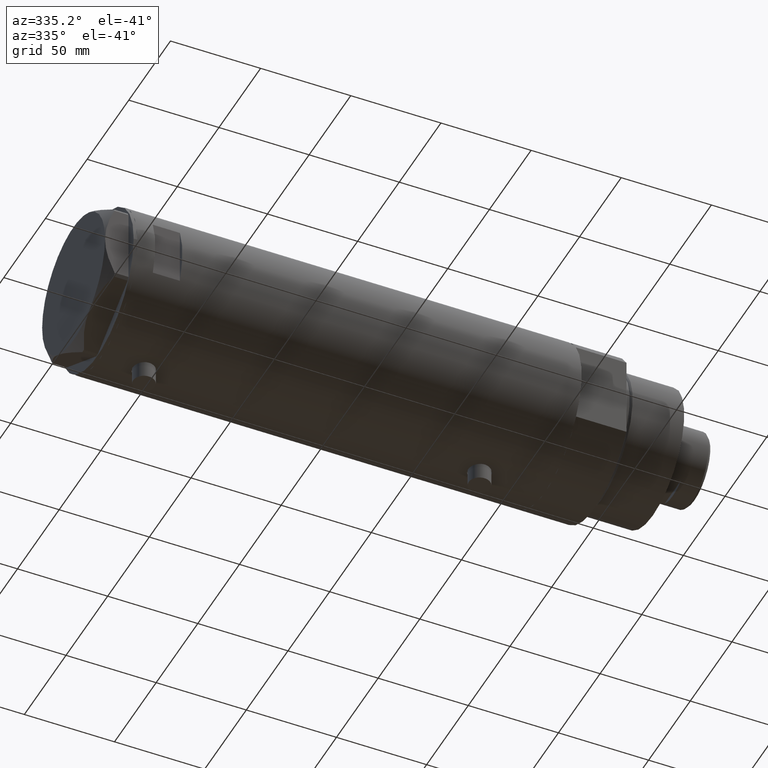
[diagram: clean part render]
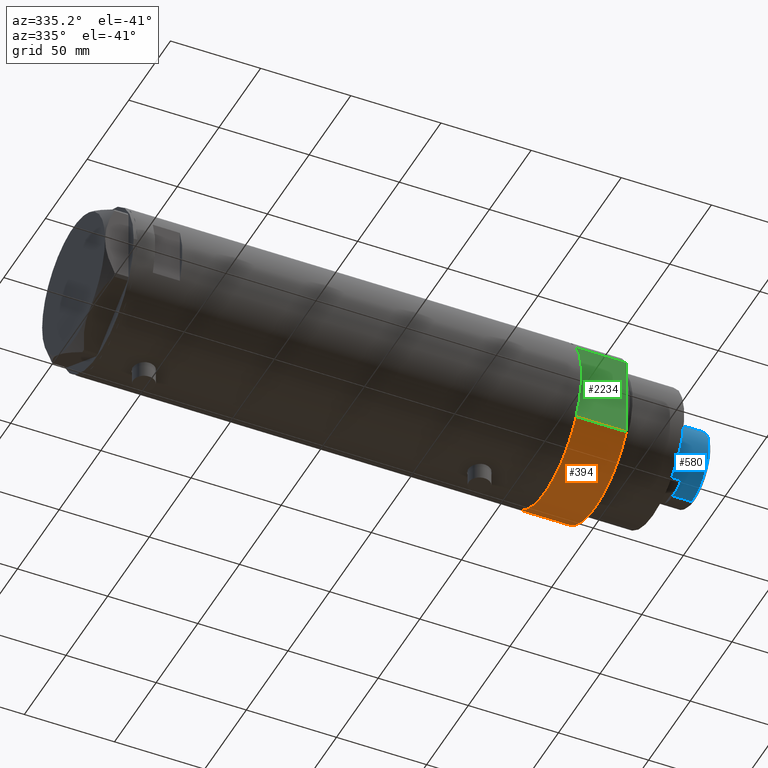
[diagram: same view with three faces highlighted in distinct colors, each labeled with its STEP entity id]
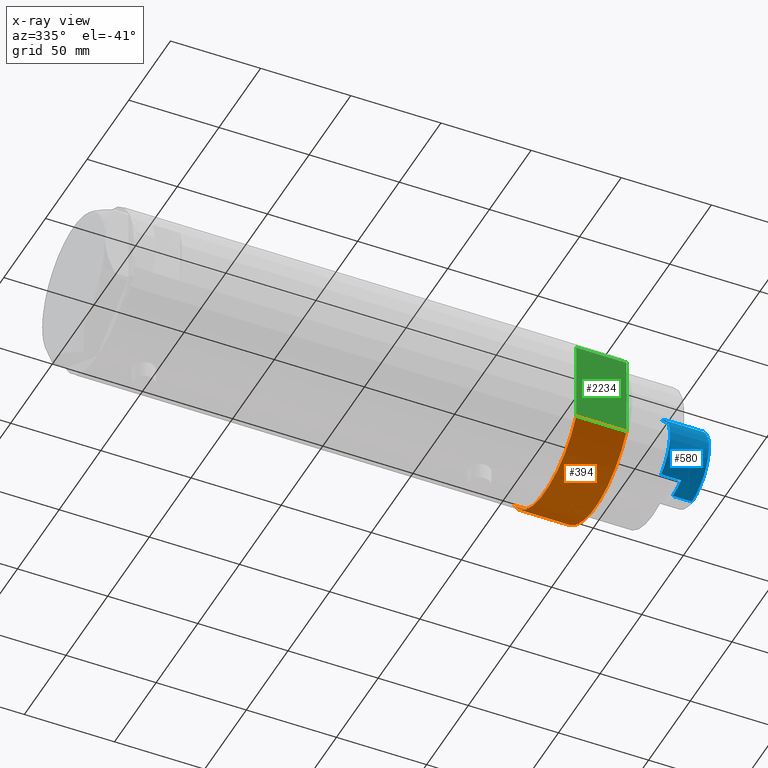
[diagram: x-ray of the same camera — body ghosted, the three highlighted faces saturated]
A machine part, auxiliary view with three faces highlighted in distinct colors.
The next image is the same camera in x-ray (body ghosted, the three faces saturated) — at least one of them is partly hidden behind the body in this view.
Their STEP definitions:

[orange] entity #394 — the highlighted cylindrical surface (partial cylindrical patch) has radius 44 mm, axis along (-1, -0, 0).
#49 = CIRCLE ( 'NONE', #2913, 44.00000000000000000 ) ;
#90 = LINE ( 'NONE', #1195, #3268 ) ;
#135 = CARTESIAN_POINT ( 'NONE',  ( 23.01629857296780557, 37.50000000000000000, 27.89999999999999858 ) ) ;
#159 = DIRECTION ( 'NONE',  ( -1.000000000000000000, 0.000000000000000000, 0.000000000000000000 ) ) ;
#394 = ADVANCED_FACE ( 'NONE', ( #999 ), #2372, .T. ) ;
#421 = DIRECTION ( 'NONE',  ( 1.000000000000000000, 0.000000000000000000, 0.000000000000000000 ) ) ;
#455 = VERTEX_POINT ( 'NONE', #3279 ) ;
#682 = EDGE_LOOP ( 'NONE', ( #3407, #3739, #4315, #1361 ) ) ;
#793 = CARTESIAN_POINT ( 'NONE',  ( 0.000000000000000000, 0.000000000000000000, 27.89999999999999858 ) ) ;
#938 = EDGE_CURVE ( 'NONE', #3996, #4109, #2918, .T. ) ;
#999 = FACE_OUTER_BOUND ( 'NONE', #682, .T. ) ;
#1195 = CARTESIAN_POINT ( 'NONE',  ( 23.01629857296780557, -37.50000000000000000, 0.000000000000000000 ) ) ;
#1213 = DIRECTION ( 'NONE',  ( -0.000000000000000000, -0.000000000000000000, 1.000000000000000000 ) ) ;
#1221 = DIRECTION ( 'NONE',  ( 1.000000000000000000, 0.000000000000000000, 0.000000000000000000 ) ) ;
#1317 = AXIS2_PLACEMENT_3D ( 'NONE', #4227, #1952, #1221 ) ;
#1361 = ORIENTED_EDGE ( 'NONE', *, *, #938, .T. ) ;
#1524 = DIRECTION ( 'NONE',  ( -0.000000000000000000, -0.000000000000000000, 1.000000000000000000 ) ) ;
#1820 = EDGE_CURVE ( 'NONE', #3436, #3996, #4392, .T. ) ;
#1952 = DIRECTION ( 'NONE',  ( 0.000000000000000000, 0.000000000000000000, 1.000000000000000000 ) ) ;
#2009 = VECTOR ( 'NONE', #1524, 1000.000000000000000 ) ;
#2215 = EDGE_CURVE ( 'NONE', #3436, #455, #90, .T. ) ;
#2372 = CYLINDRICAL_SURFACE ( 'NONE', #4319, 44.00000000000000000 ) ;
#2465 = CARTESIAN_POINT ( 'NONE',  ( 23.01629857296780557, 37.50000000000000000, 0.000000000000000000 ) ) ;
#2641 = DIRECTION ( 'NONE',  ( -0.000000000000000000, -0.000000000000000000, -1.000000000000000000 ) ) ;
#2896 = DIRECTION ( 'NONE',  ( 0.000000000000000000, 0.000000000000000000, 1.000000000000000000 ) ) ;
#2913 = AXIS2_PLACEMENT_3D ( 'NONE', #793, #2896, #421 ) ;
#2918 = LINE ( 'NONE', #3250, #2009 ) ;
#2926 = EDGE_CURVE ( 'NONE', #455, #4109, #49, .T. ) ;
#3250 = CARTESIAN_POINT ( 'NONE',  ( 23.01629857296780557, 37.50000000000000000, 0.000000000000000000 ) ) ;
#3268 = VECTOR ( 'NONE', #1213, 1000.000000000000000 ) ;
#3279 = CARTESIAN_POINT ( 'NONE',  ( 23.01629857296780557, -37.50000000000000000, 27.89999999999999858 ) ) ;
#3303 = CARTESIAN_POINT ( 'NONE',  ( 0.000000000000000000, 0.000000000000000000, 27.89999999999999858 ) ) ;
#3407 = ORIENTED_EDGE ( 'NONE', *, *, #2926, .F. ) ;
#3436 = VERTEX_POINT ( 'NONE', #3997 ) ;
#3739 = ORIENTED_EDGE ( 'NONE', *, *, #2215, .F. ) ;
#3996 = VERTEX_POINT ( 'NONE', #2465 ) ;
#3997 = CARTESIAN_POINT ( 'NONE',  ( 23.01629857296780557, -37.50000000000000000, 0.000000000000000000 ) ) ;
#4109 = VERTEX_POINT ( 'NONE', #135 ) ;
#4227 = CARTESIAN_POINT ( 'NONE',  ( 0.000000000000000000, 0.000000000000000000, 0.000000000000000000 ) ) ;
#4315 = ORIENTED_EDGE ( 'NONE', *, *, #1820, .T. ) ;
#4319 = AXIS2_PLACEMENT_3D ( 'NONE', #3303, #2641, #159 ) ;
#4392 = CIRCLE ( 'NONE', #1317, 44.00000000000000000 ) ;

[blue] entity #580 — the highlighted cylindrical surface (partial cylindrical patch) has radius 20.5 mm, axis along (-1, -0, 0).
#35 = LINE ( 'NONE', #2434, #431 ) ;
#171 = VERTEX_POINT ( 'NONE', #1532 ) ;
#270 = DIRECTION ( 'NONE',  ( 0.000000000000000000, 0.000000000000000000, -1.000000000000000000 ) ) ;
#299 = DIRECTION ( 'NONE',  ( -0.000000000000000000, -0.000000000000000000, -1.000000000000000000 ) ) ;
#319 = FACE_OUTER_BOUND ( 'NONE', #3604, .T. ) ;
#359 = VERTEX_POINT ( 'NONE', #3048 ) ;
#375 = ORIENTED_EDGE ( 'NONE', *, *, #2410, .F. ) ;
#431 = VECTOR ( 'NONE', #1427, 1000.000000000000000 ) ;
#561 = ORIENTED_EDGE ( 'NONE', *, *, #2627, .T. ) ;
#563 = AXIS2_PLACEMENT_3D ( 'NONE', #3445, #299, #952 ) ;
#580 = ADVANCED_FACE ( 'NONE', ( #319 ), #581, .T. ) ;
#581 = CYLINDRICAL_SURFACE ( 'NONE', #563, 20.50000000000000355 ) ;
#604 = EDGE_CURVE ( 'NONE', #171, #359, #4218, .T. ) ;
#734 = VERTEX_POINT ( 'NONE', #3215 ) ;
#856 = DIRECTION ( 'NONE',  ( 0.000000000000000000, 0.000000000000000000, 1.000000000000000000 ) ) ;
#874 = VERTEX_POINT ( 'NONE', #1891 ) ;
#952 = DIRECTION ( 'NONE',  ( -1.000000000000000000, 0.000000000000000000, 0.000000000000000000 ) ) ;
#1011 = CARTESIAN_POINT ( 'NONE',  ( 20.50000000000000355, 2.510525938252074481E-15, 291.3000000000000114 ) ) ;
#1254 = DIRECTION ( 'NONE',  ( 1.000000000000000000, 0.000000000000000000, 0.000000000000000000 ) ) ;
#1362 = CARTESIAN_POINT ( 'NONE',  ( 17.97852886083843060, -9.850000000000019185, 280.3000000000000114 ) ) ;
#1367 = VERTEX_POINT ( 'NONE', #1861 ) ;
#1427 = DIRECTION ( 'NONE',  ( -0.000000000000000000, -0.000000000000000000, -1.000000000000000000 ) ) ;
#1486 = DIRECTION ( 'NONE',  ( 1.000000000000000000, 0.000000000000000000, 0.000000000000000000 ) ) ;
#1525 = CIRCLE ( 'NONE', #4089, 20.50000000000000355 ) ;
#1532 = CARTESIAN_POINT ( 'NONE',  ( -17.97852886083842705, -9.849999999999996092, 291.3000000000000114 ) ) ;
#1564 = VERTEX_POINT ( 'NONE', #1362 ) ;
#1588 = EDGE_CURVE ( 'NONE', #874, #1367, #3852, .T. ) ;
#1601 = CIRCLE ( 'NONE', #2538, 20.50000000000000000 ) ;
#1678 = DIRECTION ( 'NONE',  ( 1.000000000000000000, 0.000000000000000000, 0.000000000000000000 ) ) ;
#1861 = CARTESIAN_POINT ( 'NONE',  ( 20.50000000000000000, 2.510525938252074481E-15, 291.3000000000000114 ) ) ;
#1862 = ORIENTED_EDGE ( 'NONE', *, *, #2435, .T. ) ;
#1864 = DIRECTION ( 'NONE',  ( 0.000000000000000000, 0.000000000000000000, 1.000000000000000000 ) ) ;
#1891 = CARTESIAN_POINT ( 'NONE',  ( 20.50000000000000355, 2.510525938252074481E-15, 301.8999999999999773 ) ) ;
#1944 = VECTOR ( 'NONE', #2325, 1000.000000000000000 ) ;
#2024 = AXIS2_PLACEMENT_3D ( 'NONE', #4332, #856, #1486 ) ;
#2036 = ORIENTED_EDGE ( 'NONE', *, *, #2293, .T. ) ;
#2121 = ORIENTED_EDGE ( 'NONE', *, *, #1588, .F. ) ;
#2194 = CARTESIAN_POINT ( 'NONE',  ( 0.000000000000000000, 0.000000000000000000, 291.3000000000000114 ) ) ;
#2293 = EDGE_CURVE ( 'NONE', #734, #171, #2376, .T. ) ;
#2325 = DIRECTION ( 'NONE',  ( -0.000000000000000000, -0.000000000000000000, -1.000000000000000000 ) ) ;
#2376 = CIRCLE ( 'NONE', #3340, 20.50000000000000000 ) ;
#2410 = EDGE_CURVE ( 'NONE', #4254, #1564, #4047, .T. ) ;
#2423 = CARTESIAN_POINT ( 'NONE',  ( -20.50000000000000355, 0.000000000000000000, 301.8999999999999773 ) ) ;
#2434 = CARTESIAN_POINT ( 'NONE',  ( -20.50000000000000355, 0.000000000000000000, 291.3000000000000114 ) ) ;
#2435 = EDGE_CURVE ( 'NONE', #874, #3901, #1525, .T. ) ;
#2490 = CARTESIAN_POINT ( 'NONE',  ( -17.97852886083842350, -9.850000000000001421, 291.3000000000000114 ) ) ;
#2538 = AXIS2_PLACEMENT_3D ( 'NONE', #3928, #4360, #4284 ) ;
#2627 = EDGE_CURVE ( 'NONE', #4254, #1367, #1601, .T. ) ;
#2988 = VECTOR ( 'NONE', #4158, 1000.000000000000000 ) ;
#3048 = CARTESIAN_POINT ( 'NONE',  ( -17.97852886083842350, -9.850000000000029843, 280.3000000000000114 ) ) ;
#3108 = CARTESIAN_POINT ( 'NONE',  ( 17.97852886083843060, -9.849999999999994316, 291.3000000000000114 ) ) ;
#3215 = CARTESIAN_POINT ( 'NONE',  ( -20.50000000000000000, 0.000000000000000000, 291.3000000000000114 ) ) ;
#3284 = CIRCLE ( 'NONE', #2024, 20.50000000000000355 ) ;
#3340 = AXIS2_PLACEMENT_3D ( 'NONE', #2194, #1864, #1254 ) ;
#3439 = CARTESIAN_POINT ( 'NONE',  ( 0.000000000000000000, 0.000000000000000000, 301.8999999999999773 ) ) ;
#3445 = CARTESIAN_POINT ( 'NONE',  ( 0.000000000000000000, 0.000000000000000000, 291.3000000000000114 ) ) ;
#3494 = VECTOR ( 'NONE', #3536, 1000.000000000000000 ) ;
#3536 = DIRECTION ( 'NONE',  ( -0.000000000000000000, -0.000000000000000000, -1.000000000000000000 ) ) ;
#3604 = EDGE_LOOP ( 'NONE', ( #2121, #1862, #3645, #2036, #4163, #3932, #375, #561 ) ) ;
#3645 = ORIENTED_EDGE ( 'NONE', *, *, #4212, .T. ) ;
#3852 = LINE ( 'NONE', #1011, #2988 ) ;
#3901 = VERTEX_POINT ( 'NONE', #2423 ) ;
#3928 = CARTESIAN_POINT ( 'NONE',  ( 0.000000000000000000, 0.000000000000000000, 291.3000000000000114 ) ) ;
#3932 = ORIENTED_EDGE ( 'NONE', *, *, #4120, .T. ) ;
#4047 = LINE ( 'NONE', #4068, #1944 ) ;
#4068 = CARTESIAN_POINT ( 'NONE',  ( 17.97852886083843060, -9.849999999999994316, 291.3000000000000114 ) ) ;
#4089 = AXIS2_PLACEMENT_3D ( 'NONE', #3439, #270, #1678 ) ;
#4120 = EDGE_CURVE ( 'NONE', #359, #1564, #3284, .T. ) ;
#4158 = DIRECTION ( 'NONE',  ( -0.000000000000000000, -0.000000000000000000, -1.000000000000000000 ) ) ;
#4163 = ORIENTED_EDGE ( 'NONE', *, *, #604, .T. ) ;
#4212 = EDGE_CURVE ( 'NONE', #3901, #734, #35, .T. ) ;
#4218 = LINE ( 'NONE', #2490, #3494 ) ;
#4254 = VERTEX_POINT ( 'NONE', #3108 ) ;
#4284 = DIRECTION ( 'NONE',  ( 1.000000000000000000, 0.000000000000000000, 0.000000000000000000 ) ) ;
#4332 = CARTESIAN_POINT ( 'NONE',  ( 0.000000000000000000, 0.000000000000000000, 280.3000000000000114 ) ) ;
#4360 = DIRECTION ( 'NONE',  ( 0.000000000000000000, 0.000000000000000000, 1.000000000000000000 ) ) ;

[green] entity #2234 — the highlighted planar face has unit normal (-0, 1, 0).
#90 = LINE ( 'NONE', #1195, #3268 ) ;
#100 = CARTESIAN_POINT ( 'NONE',  ( -23.01629857296780557, -37.50000000000000000, 27.89999999999999858 ) ) ;
#455 = VERTEX_POINT ( 'NONE', #3279 ) ;
#462 = CARTESIAN_POINT ( 'NONE',  ( -23.01629857296780557, -37.50000000000000000, 0.000000000000000000 ) ) ;
#481 = DIRECTION ( 'NONE',  ( -1.000000000000000000, -0.000000000000000000, -0.000000000000000000 ) ) ;
#523 = LINE ( 'NONE', #4358, #2168 ) ;
#645 = VECTOR ( 'NONE', #481, 1000.000000000000000 ) ;
#676 = CARTESIAN_POINT ( 'NONE',  ( -23.01629857296780557, -37.50000000000000000, 0.000000000000000000 ) ) ;
#718 = EDGE_CURVE ( 'NONE', #4371, #3254, #2384, .T. ) ;
#781 = ORIENTED_EDGE ( 'NONE', *, *, #2798, .T. ) ;
#930 = CARTESIAN_POINT ( 'NONE',  ( -23.01629857296780557, -37.50000000000000000, 0.000000000000000000 ) ) ;
#1195 = CARTESIAN_POINT ( 'NONE',  ( 23.01629857296780557, -37.50000000000000000, 0.000000000000000000 ) ) ;
#1213 = DIRECTION ( 'NONE',  ( -0.000000000000000000, -0.000000000000000000, 1.000000000000000000 ) ) ;
#1265 = DIRECTION ( 'NONE',  ( -1.000000000000000000, -0.000000000000000000, -0.000000000000000000 ) ) ;
#1284 = ORIENTED_EDGE ( 'NONE', *, *, #718, .F. ) ;
#1338 = DIRECTION ( 'NONE',  ( -0.000000000000000000, -0.000000000000000000, 1.000000000000000000 ) ) ;
#1347 = CARTESIAN_POINT ( 'NONE',  ( 13.91941090707505957, -37.50000000000000000, 0.000000000000000000 ) ) ;
#1355 = DIRECTION ( 'NONE',  ( -1.000000000000000000, -0.000000000000000000, -0.000000000000000000 ) ) ;
#1537 = DIRECTION ( 'NONE',  ( -1.000000000000000000, -0.000000000000000000, -0.000000000000000000 ) ) ;
#1571 = DIRECTION ( 'NONE',  ( 0.000000000000000000, -0.000000000000000000, 1.000000000000000000 ) ) ;
#1584 = ORIENTED_EDGE ( 'NONE', *, *, #2816, .T. ) ;
#1768 = ORIENTED_EDGE ( 'NONE', *, *, #2215, .T. ) ;
#1833 = LINE ( 'NONE', #3973, #3124 ) ;
#1844 = FACE_OUTER_BOUND ( 'NONE', #2782, .T. ) ;
#1918 = EDGE_CURVE ( 'NONE', #2117, #4371, #523, .T. ) ;
#1976 = VERTEX_POINT ( 'NONE', #4179 ) ;
#2117 = VERTEX_POINT ( 'NONE', #2405 ) ;
#2168 = VECTOR ( 'NONE', #1265, 1000.000000000000000 ) ;
#2215 = EDGE_CURVE ( 'NONE', #3436, #455, #90, .T. ) ;
#2234 = ADVANCED_FACE ( 'NONE', ( #1844 ), #2980, .F. ) ;
#2384 = LINE ( 'NONE', #3803, #3269 ) ;
#2405 = CARTESIAN_POINT ( 'NONE',  ( -13.91941090707505957, -37.50000000000000000, 0.000000000000000000 ) ) ;
#2444 = VERTEX_POINT ( 'NONE', #1347 ) ;
#2454 = AXIS2_PLACEMENT_3D ( 'NONE', #462, #3248, #1571 ) ;
#2523 = LINE ( 'NONE', #100, #3948 ) ;
#2782 = EDGE_LOOP ( 'NONE', ( #1584, #781, #1284, #3112, #4538, #3292, #1768 ) ) ;
#2798 = EDGE_CURVE ( 'NONE', #1976, #3254, #1833, .T. ) ;
#2816 = EDGE_CURVE ( 'NONE', #455, #1976, #2523, .T. ) ;
#2880 = DIRECTION ( 'NONE',  ( -1.000000000000000000, -0.000000000000000000, -0.000000000000000000 ) ) ;
#2980 = PLANE ( 'NONE',  #2454 ) ;
#3112 = ORIENTED_EDGE ( 'NONE', *, *, #1918, .F. ) ;
#3124 = VECTOR ( 'NONE', #2880, 1000.000000000000000 ) ;
#3248 = DIRECTION ( 'NONE',  ( -0.000000000000000000, 1.000000000000000000, 0.000000000000000000 ) ) ;
#3254 = VERTEX_POINT ( 'NONE', #4086 ) ;
#3268 = VECTOR ( 'NONE', #1213, 1000.000000000000000 ) ;
#3269 = VECTOR ( 'NONE', #1338, 1000.000000000000000 ) ;
#3279 = CARTESIAN_POINT ( 'NONE',  ( 23.01629857296780557, -37.50000000000000000, 27.89999999999999858 ) ) ;
#3292 = ORIENTED_EDGE ( 'NONE', *, *, #3568, .F. ) ;
#3354 = VECTOR ( 'NONE', #1355, 1000.000000000000000 ) ;
#3436 = VERTEX_POINT ( 'NONE', #3997 ) ;
#3453 = CARTESIAN_POINT ( 'NONE',  ( -23.01629857296780557, -37.50000000000000000, 0.000000000000000000 ) ) ;
#3568 = EDGE_CURVE ( 'NONE', #3436, #2444, #4126, .T. ) ;
#3803 = CARTESIAN_POINT ( 'NONE',  ( -23.01629857296780557, -37.50000000000000000, 0.000000000000000000 ) ) ;
#3821 = LINE ( 'NONE', #676, #645 ) ;
#3948 = VECTOR ( 'NONE', #1537, 1000.000000000000000 ) ;
#3973 = CARTESIAN_POINT ( 'NONE',  ( -23.01629857296780557, -37.50000000000000000, 27.89999999999999858 ) ) ;
#3997 = CARTESIAN_POINT ( 'NONE',  ( 23.01629857296780557, -37.50000000000000000, 0.000000000000000000 ) ) ;
#4008 = EDGE_CURVE ( 'NONE', #2444, #2117, #3821, .T. ) ;
#4086 = CARTESIAN_POINT ( 'NONE',  ( -23.01629857296780557, -37.50000000000000000, 27.89999999999999858 ) ) ;
#4126 = LINE ( 'NONE', #930, #3354 ) ;
#4179 = CARTESIAN_POINT ( 'NONE',  ( 0.000000000000000000, -37.50000000000000000, 27.89999999999999858 ) ) ;
#4358 = CARTESIAN_POINT ( 'NONE',  ( -23.01629857296780557, -37.50000000000000000, 0.000000000000000000 ) ) ;
#4371 = VERTEX_POINT ( 'NONE', #3453 ) ;
#4538 = ORIENTED_EDGE ( 'NONE', *, *, #4008, .F. ) ;